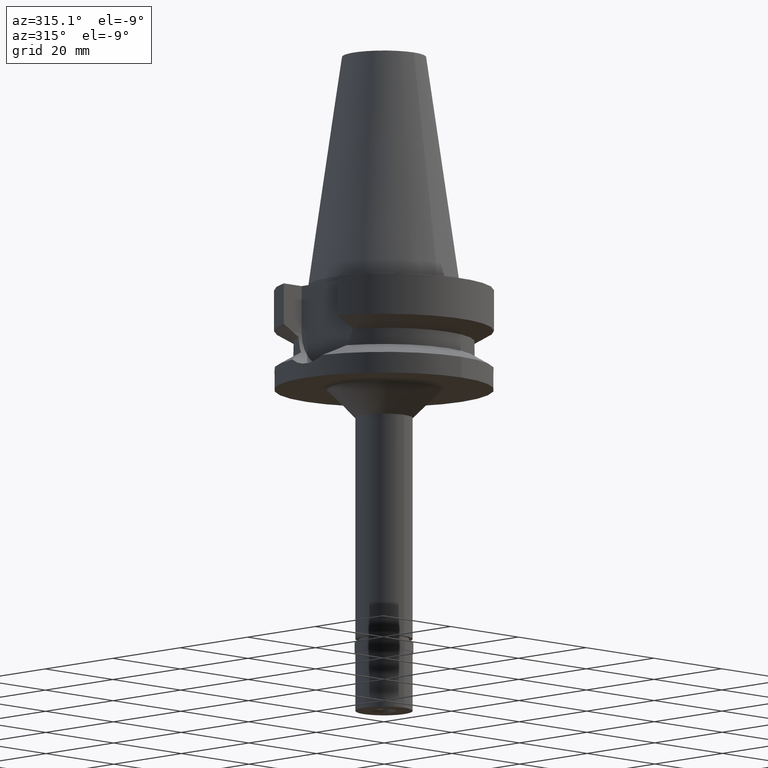
[diagram: clean part render]
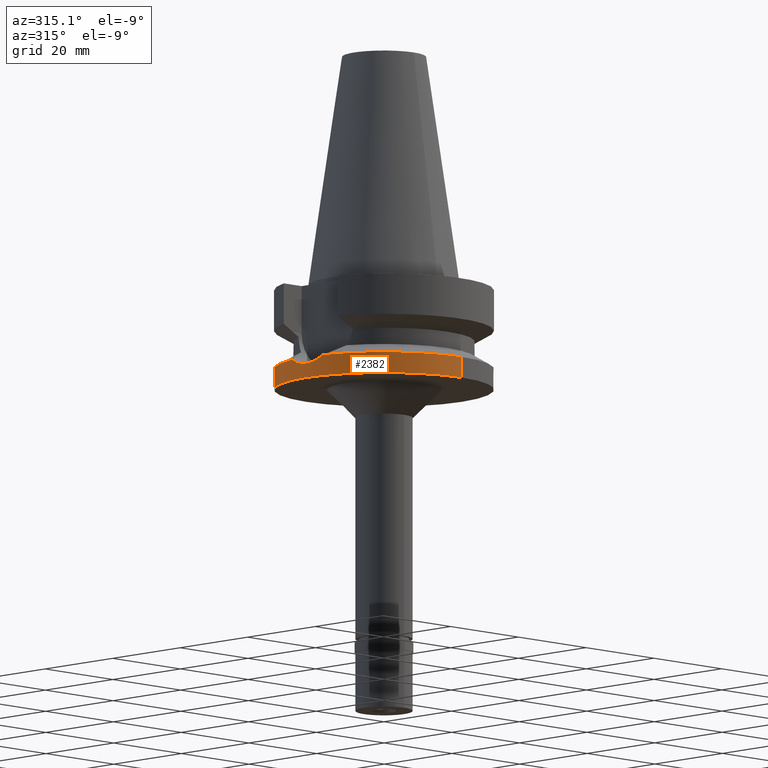
[diagram: same view with one face highlighted and labeled with its STEP entity id]
A machine part, auxiliary view. The second image highlights one B-rep face of the part: STEP entity #2382.
In plain terms, the highlighted cylindrical surface (partial cylindrical patch) has radius 23.0018 mm, axis along (0, 0, -1).
Its self-contained STEP definition (entity closure, byte-faithful):
#42 = ORIENTED_EDGE ( 'NONE', *, *, #1698, .T. ) ;
#95 = CARTESIAN_POINT ( 'NONE',  ( -22.91451886367131152, -2.006575868976689492, -18.74703727794431884 ) ) ;
#206 = AXIS2_PLACEMENT_3D ( 'NONE', #2675, #683, #413 ) ;
#232 = CARTESIAN_POINT ( 'NONE',  ( -22.55969031021000148, -4.488072640469000341, -17.63279163029000074 ) ) ;
#266 = CARTESIAN_POINT ( 'NONE',  ( -22.70549665653165405, -3.755164267108145992, -18.12500299949416416 ) ) ;
#293 = CARTESIAN_POINT ( 'NONE',  ( -22.95353798307994708, 1.537726694965947161, -18.86162712819263376 ) ) ;
#316 = CARTESIAN_POINT ( 'NONE',  ( 0.0000000000000000000, 1.899672114836999856E-14, 55.12000000000000455 ) ) ;
#321 = EDGE_CURVE ( 'NONE', #2556, #2838, #1100, .T. ) ;
#326 = CARTESIAN_POINT ( 'NONE',  ( -22.88691246850320482, -2.297151305620180217, -18.66532444237895305 ) ) ;
#336 = VERTEX_POINT ( 'NONE', #931 ) ;
#361 = B_SPLINE_CURVE_WITH_KNOTS ( 'NONE', 3,
 ( #2094, #2512, #544, #2496, #1220, #515, #2703, #2297, #2739, #528, #505, #2053, #293, #1379, #1445, #1195, #745, #1425, #2311, #1888, #95, #977, #2326, #326, #2272, #1166, #266, #1235 ),
 .UNSPECIFIED., .F., .F.,
 ( 4, 2, 2, 1, 1, 2, 2, 2, 2, 2, 2, 1, 1, 2, 2, 4 ),
 ( 0.0000000000000000000, 0.1250000000000003608, 0.1875000000000003053, 0.2187500000000003053, 0.2343750000000002776, 0.2421875000000003331, 0.2500000000000003886, 0.3750000000000003331, 0.5000000000000003331, 0.6250000000000002220, 0.6875000000000002220, 0.7187500000000001110, 0.7343750000000001110, 0.7421875000000003331, 0.7500000000000005551, 1.000000000000000000 ),
 .UNSPECIFIED. ) ;
#393 = DIRECTION ( 'NONE',  ( 0.0000000000000000000, -2.440492903962000069E-14, -1.000000000000000000 ) ) ;
#413 = DIRECTION ( 'NONE',  ( 0.0000000000000000000, -1.000000000000000000, 0.0000000000000000000 ) ) ;
#493 = VECTOR ( 'NONE', #393, 1000.000000000000000 ) ;
#505 = CARTESIAN_POINT ( 'NONE',  ( -22.88243651354250829, 2.341424885127310063, -18.65200427552328577 ) ) ;
#515 = CARTESIAN_POINT ( 'NONE',  ( -22.83667481422170908, 2.751756902361195856, -18.51566611199861256 ) ) ;
#528 = CARTESIAN_POINT ( 'NONE',  ( -22.88041709303478299, 2.361027391203026404, -18.64600890430991953 ) ) ;
#529 = EDGE_LOOP ( 'NONE', ( #2502, #1761, #42, #887, #1325, #906 ) ) ;
#544 = CARTESIAN_POINT ( 'NONE',  ( -22.69749075560478602, 3.744428308985928489, -18.08743490070125048 ) ) ;
#683 = DIRECTION ( 'NONE',  ( 0.0000000000000000000, 0.0000000000000000000, -1.000000000000000000 ) ) ;
#690 = EDGE_CURVE ( 'NONE', #1495, #336, #2568, .T. ) ;
#714 = DIRECTION ( 'NONE',  ( -0.9807796963072338281, 0.1951183930630069618, 0.0000000000000000000 ) ) ;
#745 = CARTESIAN_POINT ( 'NONE',  ( -22.99134535191648965, -0.7902374729131969033, -18.97077824158604997 ) ) ;
#783 = CARTESIAN_POINT ( 'NONE',  ( 0.0000000000000000000, 1.022848384030000006E-14, -17.63279163029000074 ) ) ;
#794 = CARTESIAN_POINT ( 'NONE',  ( 0.0000000000000000000, -23.00179173279000011, -17.63279163029000074 ) ) ;
#883 = DIRECTION ( 'NONE',  ( 0.0000000000000000000, 0.0000000000000000000, -1.000000000000000000 ) ) ;
#887 = ORIENTED_EDGE ( 'NONE', *, *, #950, .F. ) ;
#906 = ORIENTED_EDGE ( 'NONE', *, *, #1417, .F. ) ;
#916 = VERTEX_POINT ( 'NONE', #2100 ) ;
#931 = CARTESIAN_POINT ( 'NONE',  ( 0.0000000000000000000, 23.00179173279000011, -22.00000000000000000 ) ) ;
#950 = EDGE_CURVE ( 'NONE', #2556, #1543, #2758, .T. ) ;
#977 = CARTESIAN_POINT ( 'NONE',  ( -22.89879591878534626, -2.176205080255289470, -18.70055268273487670 ) ) ;
#982 = DIRECTION ( 'NONE',  ( 0.0000000000000000000, 2.359143140496999862E-14, -1.000000000000000000 ) ) ;
#1006 = AXIS2_PLACEMENT_3D ( 'NONE', #783, #1671, #714 ) ;
#1007 = EDGE_CURVE ( 'NONE', #916, #1495, #1992, .T. ) ;
#1062 = AXIS2_PLACEMENT_3D ( 'NONE', #1577, #1988, #2034 ) ;
#1100 = CIRCLE ( 'NONE', #206, 23.00179173279000011 ) ;
#1111 = FACE_OUTER_BOUND ( 'NONE', #529, .T. ) ;
#1166 = CARTESIAN_POINT ( 'NONE',  ( -22.81297393379264804, -3.018877893465228723, -18.44574291449669445 ) ) ;
#1195 = CARTESIAN_POINT ( 'NONE',  ( -23.00147968551750921, -0.4019482060731227047, -18.99908015817943152 ) ) ;
#1220 = CARTESIAN_POINT ( 'NONE',  ( -22.80339899615021437, 3.017609335975976581, -18.41541445381143660 ) ) ;
#1235 = CARTESIAN_POINT ( 'NONE',  ( -22.55969031021000148, -4.488072640469000341, -17.63279163029000074 ) ) ;
#1263 = CARTESIAN_POINT ( 'NONE',  ( 0.0000000000000000000, 23.00179173279000011, -17.63279163029000074 ) ) ;
#1325 = ORIENTED_EDGE ( 'NONE', *, *, #321, .T. ) ;
#1379 = CARTESIAN_POINT ( 'NONE',  ( -22.99250232121507054, 0.7559799306184038503, -18.97414740321155691 ) ) ;
#1417 = EDGE_CURVE ( 'NONE', #916, #2838, #361, .T. ) ;
#1425 = CARTESIAN_POINT ( 'NONE',  ( -22.96139880800737387, -1.374148370437481059, -18.88428830911116663 ) ) ;
#1438 = VECTOR ( 'NONE', #982, 1000.000000000000000 ) ;
#1445 = CARTESIAN_POINT ( 'NONE',  ( -23.00208829470935612, 0.3642187397825778494, -19.00087563329320872 ) ) ;
#1463 = CARTESIAN_POINT ( 'NONE',  ( 0.0000000000000000000, -23.00179173279000011, -17.63279163029000074 ) ) ;
#1495 = VERTEX_POINT ( 'NONE', #1263 ) ;
#1543 = VERTEX_POINT ( 'NONE', #1953 ) ;
#1577 = CARTESIAN_POINT ( 'NONE',  ( 0.0000000000000000000, 1.899672114836999856E-14, -22.00000000000000000 ) ) ;
#1671 = DIRECTION ( 'NONE',  ( 0.0000000000000000000, 0.0000000000000000000, -1.000000000000000000 ) ) ;
#1688 = CARTESIAN_POINT ( 'NONE',  ( 0.0000000000000000000, 23.00179173279000011, -17.63279163029000074 ) ) ;
#1698 = EDGE_CURVE ( 'NONE', #336, #1543, #2189, .T. ) ;
#1761 = ORIENTED_EDGE ( 'NONE', *, *, #690, .T. ) ;
#1838 = AXIS2_PLACEMENT_3D ( 'NONE', #316, #883, #2655 ) ;
#1888 = CARTESIAN_POINT ( 'NONE',  ( -22.92661332574471444, -1.860811757635261632, -18.78261237851851817 ) ) ;
#1953 = CARTESIAN_POINT ( 'NONE',  ( 0.0000000000000000000, -23.00179173279000011, -22.00000000000000000 ) ) ;
#1988 = DIRECTION ( 'NONE',  ( 0.0000000000000000000, 0.0000000000000000000, 1.000000000000000000 ) ) ;
#1992 = CIRCLE ( 'NONE', #1006, 23.00179173279000366 ) ;
#2003 = CYLINDRICAL_SURFACE ( 'NONE', #1838, 23.00179173279000011 ) ;
#2034 = DIRECTION ( 'NONE',  ( 0.0000000000000000000, 1.000000000000000000, 0.0000000000000000000 ) ) ;
#2053 = CARTESIAN_POINT ( 'NONE',  ( -22.92416157534498566, 1.929444050632325602, -18.77583388469185621 ) ) ;
#2094 = CARTESIAN_POINT ( 'NONE',  ( -22.55969031021000148, 4.488072640469000341, -17.63279163029000074 ) ) ;
#2100 = CARTESIAN_POINT ( 'NONE',  ( -22.55969031021000148, 4.488072640469000341, -17.63279163029000074 ) ) ;
#2189 = CIRCLE ( 'NONE', #1062, 23.00179173279000011 ) ;
#2272 = CARTESIAN_POINT ( 'NONE',  ( -22.88428302349925403, -2.323174946070571512, -18.65751865391159114 ) ) ;
#2297 = CARTESIAN_POINT ( 'NONE',  ( -22.86912041129614792, 2.468354970188485709, -18.61246013723418002 ) ) ;
#2311 = CARTESIAN_POINT ( 'NONE',  ( -22.94895911945306821, -1.569021787533816603, -18.84812755709506149 ) ) ;
#2326 = CARTESIAN_POINT ( 'NONE',  ( -22.89171192687702927, -2.248789465468894022, -18.67955893386412214 ) ) ;
#2382 = ADVANCED_FACE ( 'NONE', ( #1111 ), #2003, .T. ) ;
#2496 = CARTESIAN_POINT ( 'NONE',  ( -22.77876187090901183, 3.197807152280764509, -18.34032032442050664 ) ) ;
#2502 = ORIENTED_EDGE ( 'NONE', *, *, #1007, .T. ) ;
#2512 = CARTESIAN_POINT ( 'NONE',  ( -22.63349702596114099, 4.117076717823635157, -17.88194748345220120 ) ) ;
#2556 = VERTEX_POINT ( 'NONE', #794 ) ;
#2568 = LINE ( 'NONE', #1688, #493 ) ;
#2655 = DIRECTION ( 'NONE',  ( 0.0000000000000000000, -1.000000000000000000, 0.0000000000000000000 ) ) ;
#2675 = CARTESIAN_POINT ( 'NONE',  ( 0.0000000000000000000, 1.022848384030000006E-14, -17.63279163029000074 ) ) ;
#2703 = CARTESIAN_POINT ( 'NONE',  ( -22.85239275580987695, 2.619937523646971300, -18.56269550318771877 ) ) ;
#2739 = CARTESIAN_POINT ( 'NONE',  ( -22.87594441871170758, 2.403890158641970309, -18.63272838921258057 ) ) ;
#2758 = LINE ( 'NONE', #1463, #1438 ) ;
#2838 = VERTEX_POINT ( 'NONE', #232 ) ;